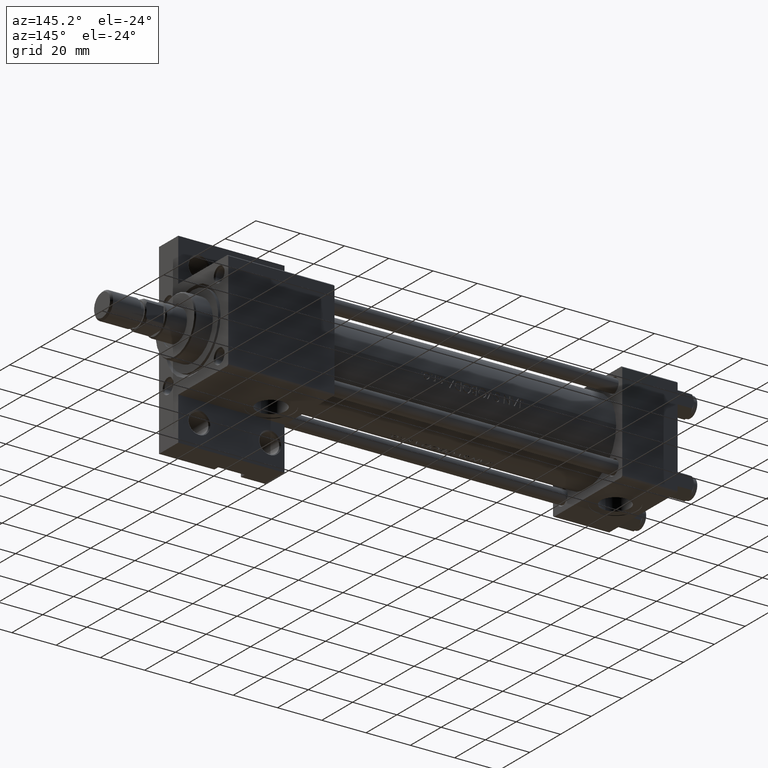
[diagram: clean part render]
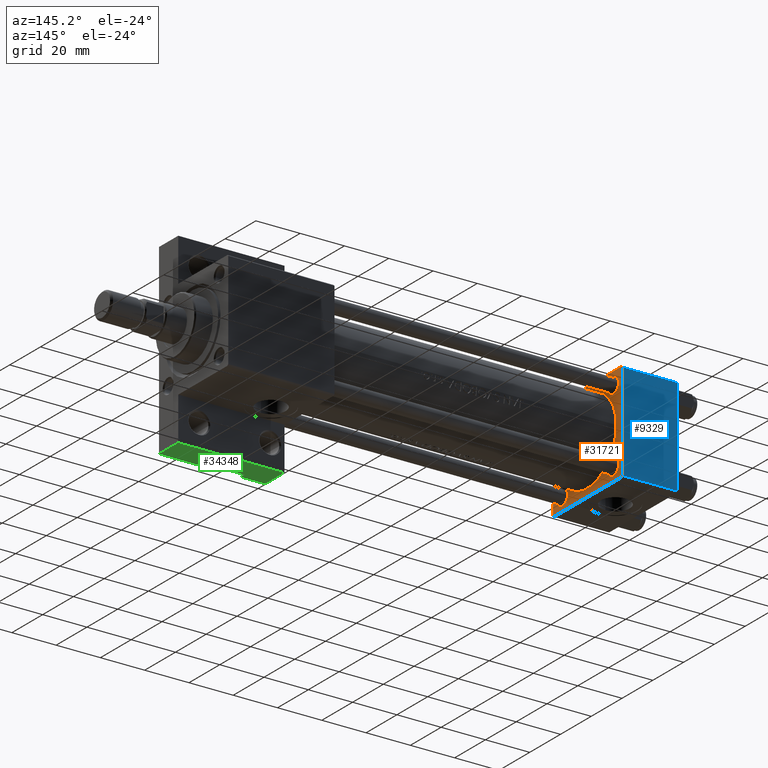
[diagram: same view with three faces highlighted in distinct colors, each labeled with its STEP entity id]
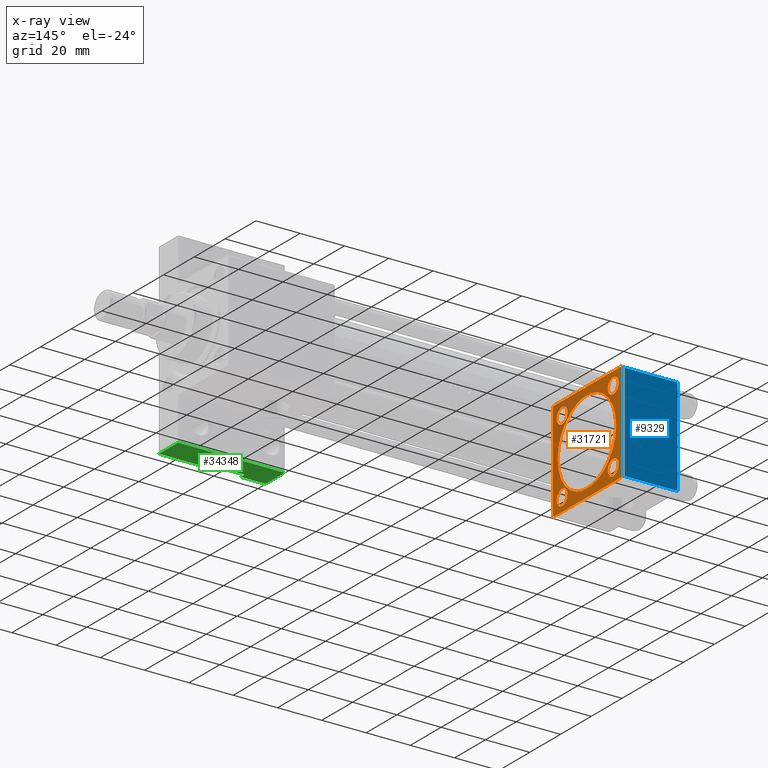
[diagram: x-ray of the same camera — body ghosted, the three highlighted faces saturated]
A machine part, auxiliary view with three faces highlighted in distinct colors.
The next image is the same camera in x-ray (body ghosted, the three faces saturated) — at least one of them is partly hidden behind the body in this view.
Their STEP definitions:

[orange] entity #31721 — the highlighted planar face has unit normal (-1, 0, -0).
#421 = ORIENTED_EDGE ( 'NONE', *, *, #47146, .T. ) ;
#547 = CARTESIAN_POINT ( 'NONE',  ( 25.00000000000000000, -16.59999999999999076, 16.60000000000000853 ) ) ;
#653 = DIRECTION ( 'NONE',  ( 0.000000000000000000, 0.000000000000000000, 1.000000000000000000 ) ) ;
#924 = DIRECTION ( 'NONE',  ( 0.000000000000000000, 0.000000000000000000, 1.000000000000000000 ) ) ;
#999 = EDGE_CURVE ( 'NONE', #15465, #1800, #34184, .T. ) ;
#1144 = DIRECTION ( 'NONE',  ( 0.000000000000000000, -1.000000000000000000, -7.709882115452476934E-17 ) ) ;
#1197 = VERTEX_POINT ( 'NONE', #13611 ) ;
#1800 = VERTEX_POINT ( 'NONE', #31229 ) ;
#1882 = CARTESIAN_POINT ( 'NONE',  ( 25.00000000000000000, 0.000000000000000000, 0.000000000000000000 ) ) ;
#2006 = CARTESIAN_POINT ( 'NONE',  ( 25.00000000000000000, -22.50000000000000000, 22.00000000000000000 ) ) ;
#2134 = FACE_BOUND ( 'NONE', #39084, .T. ) ;
#2613 = AXIS2_PLACEMENT_3D ( 'NONE', #17272, #32600, #36008 ) ;
#2733 = CIRCLE ( 'NONE', #25304, 19.00000000000000000 ) ;
#3384 = CIRCLE ( 'NONE', #44595, 19.00000000000000000 ) ;
#3739 = EDGE_CURVE ( 'NONE', #35954, #44279, #17124, .T. ) ;
#3954 = DIRECTION ( 'NONE',  ( 0.000000000000000000, 0.000000000000000000, 1.000000000000000000 ) ) ;
#4417 = CARTESIAN_POINT ( 'NONE',  ( 25.00000000000000000, -22.50000000000000000, 22.00000000000000000 ) ) ;
#4679 = EDGE_LOOP ( 'NONE', ( #5987, #32814 ) ) ;
#4760 = CARTESIAN_POINT ( 'NONE',  ( 25.00000000000000000, 21.99999999999999289, -22.49999999999999645 ) ) ;
#5399 = CARTESIAN_POINT ( 'NONE',  ( 25.00000000000000000, 22.50000000000000000, 22.50000000000000355 ) ) ;
#5987 = ORIENTED_EDGE ( 'NONE', *, *, #14437, .T. ) ;
#6533 = VERTEX_POINT ( 'NONE', #15291 ) ;
#6950 = CARTESIAN_POINT ( 'NONE',  ( 25.00000000000000000, -21.99999999999997868, 22.50000000000000000 ) ) ;
#7322 = EDGE_CURVE ( 'NONE', #15465, #6533, #38770, .T. ) ;
#7483 = CIRCLE ( 'NONE', #21467, 3.499999999999975131 ) ;
#7523 = ORIENTED_EDGE ( 'NONE', *, *, #32202, .T. ) ;
#7759 = DIRECTION ( 'NONE',  ( -1.000000000000000000, 0.000000000000000000, -0.000000000000000000 ) ) ;
#8161 = DIRECTION ( 'NONE',  ( -1.000000000000000000, 0.000000000000000000, -0.000000000000000000 ) ) ;
#9220 = VECTOR ( 'NONE', #32140, 1000.000000000000000 ) ;
#10292 = LINE ( 'NONE', #16476, #24652 ) ;
#10746 = EDGE_CURVE ( 'NONE', #1197, #24821, #34868, .T. ) ;
#10769 = VERTEX_POINT ( 'NONE', #34926 ) ;
#10780 = DIRECTION ( 'NONE',  ( 0.000000000000000000, -1.000000000000000000, -2.312964634635742957E-16 ) ) ;
#10891 = EDGE_LOOP ( 'NONE', ( #421, #37929 ) ) ;
#11168 = CIRCLE ( 'NONE', #2613, 3.499999999999975131 ) ;
#11265 = DIRECTION ( 'NONE',  ( -1.000000000000000000, 0.000000000000000000, -0.000000000000000000 ) ) ;
#12071 = DIRECTION ( 'NONE',  ( -1.000000000000000000, 0.000000000000000000, -0.000000000000000000 ) ) ;
#12723 = EDGE_CURVE ( 'NONE', #37001, #10769, #2733, .T. ) ;
#13218 = AXIS2_PLACEMENT_3D ( 'NONE', #38060, #41954, #23439 ) ;
#13355 = VERTEX_POINT ( 'NONE', #6950 ) ;
#13444 = LINE ( 'NONE', #46597, #34826 ) ;
#13611 = CARTESIAN_POINT ( 'NONE',  ( 25.00000000000000000, 16.59999999999999787, 20.10000000000000853 ) ) ;
#13651 = CIRCLE ( 'NONE', #46349, 3.500000000000003109 ) ;
#13677 = VECTOR ( 'NONE', #10780, 1000.000000000000000 ) ;
#13739 = VECTOR ( 'NONE', #32283, 1000.000000000000000 ) ;
#13803 = FACE_BOUND ( 'NONE', #31212, .T. ) ;
#13943 = DIRECTION ( 'NONE',  ( 1.000000000000000000, -0.000000000000000000, 0.000000000000000000 ) ) ;
#14040 = CARTESIAN_POINT ( 'NONE',  ( 25.00000000000000000, 22.50000000000000000, 21.99999999999999645 ) ) ;
#14105 = VERTEX_POINT ( 'NONE', #35042 ) ;
#14381 = VECTOR ( 'NONE', #19688, 1000.000000000000000 ) ;
#14437 = EDGE_CURVE ( 'NONE', #24821, #1197, #13651, .T. ) ;
#14562 = VECTOR ( 'NONE', #25067, 999.9999999999998863 ) ;
#14856 = ORIENTED_EDGE ( 'NONE', *, *, #41211, .F. ) ;
#15134 = CARTESIAN_POINT ( 'NONE',  ( 25.00000000000000000, -16.59999999999999076, 20.09999999999998721 ) ) ;
#15291 = CARTESIAN_POINT ( 'NONE',  ( 25.00000000000000000, 22.50000000000000000, -21.99999999999996803 ) ) ;
#15465 = VERTEX_POINT ( 'NONE', #14040 ) ;
#15609 = EDGE_CURVE ( 'NONE', #28983, #28818, #36250, .T. ) ;
#16476 = CARTESIAN_POINT ( 'NONE',  ( 25.00000000000000000, 22.50000000000000000, 22.50000000000000355 ) ) ;
#16504 = CARTESIAN_POINT ( 'NONE',  ( 25.00000000000000000, 22.50000000000000000, -21.99999999999998224 ) ) ;
#17124 = CIRCLE ( 'NONE', #13218, 3.499999999999978684 ) ;
#17229 = FACE_OUTER_BOUND ( 'NONE', #41843, .T. ) ;
#17272 = CARTESIAN_POINT ( 'NONE',  ( 25.00000000000000000, -16.59999999999999076, -16.60000000000000853 ) ) ;
#17649 = AXIS2_PLACEMENT_3D ( 'NONE', #36604, #11265, #37088 ) ;
#17774 = LINE ( 'NONE', #2006, #14562 ) ;
#17887 = CARTESIAN_POINT ( 'NONE',  ( 25.00000000000000000, -22.50000000000000000, -21.99999999999997158 ) ) ;
#19158 = CARTESIAN_POINT ( 'NONE',  ( 25.00000000000000000, 16.59999999999999787, -16.60000000000000497 ) ) ;
#19688 = DIRECTION ( 'NONE',  ( -0.000000000000000000, 0.7071067811865426878, 0.7071067811865524577 ) ) ;
#19919 = EDGE_LOOP ( 'NONE', ( #21684, #38648 ) ) ;
#20126 = DIRECTION ( 'NONE',  ( 0.000000000000000000, 0.000000000000000000, 1.000000000000000000 ) ) ;
#20894 = FACE_BOUND ( 'NONE', #19919, .T. ) ;
#21467 = AXIS2_PLACEMENT_3D ( 'NONE', #35191, #28139, #20126 ) ;
#21497 = DIRECTION ( 'NONE',  ( 0.000000000000000000, 0.000000000000000000, 1.000000000000000000 ) ) ;
#21684 = ORIENTED_EDGE ( 'NONE', *, *, #15609, .T. ) ;
#21986 = CARTESIAN_POINT ( 'NONE',  ( 25.00000000000000000, 22.50000000000000000, -22.49999999999999645 ) ) ;
#22310 = ORIENTED_EDGE ( 'NONE', *, *, #28432, .F. ) ;
#22483 = DIRECTION ( 'NONE',  ( -1.000000000000000000, 0.000000000000000000, -0.000000000000000000 ) ) ;
#23037 = DIRECTION ( 'NONE',  ( 0.000000000000000000, 0.000000000000000000, 1.000000000000000000 ) ) ;
#23368 = ORIENTED_EDGE ( 'NONE', *, *, #999, .T. ) ;
#23439 = DIRECTION ( 'NONE',  ( 0.000000000000000000, 0.000000000000000000, 1.000000000000000000 ) ) ;
#23533 = VERTEX_POINT ( 'NONE', #46836 ) ;
#24652 = VECTOR ( 'NONE', #1144, 1000.000000000000000 ) ;
#24740 = CARTESIAN_POINT ( 'NONE',  ( 25.00000000000000000, 16.59999999999999787, -13.10000000000000142 ) ) ;
#24821 = VERTEX_POINT ( 'NONE', #41410 ) ;
#25013 = PLANE ( 'NONE',  #45691 ) ;
#25067 = DIRECTION ( 'NONE',  ( -0.000000000000000000, -0.7071067811865525687, -0.7071067811865425767 ) ) ;
#25230 = CIRCLE ( 'NONE', #38438, 3.499999999999978684 ) ;
#25304 = AXIS2_PLACEMENT_3D ( 'NONE', #25870, #13943, #21497 ) ;
#25851 = EDGE_CURVE ( 'NONE', #33634, #6533, #34079, .T. ) ;
#25870 = CARTESIAN_POINT ( 'NONE',  ( 24.99999999999999289, 6.123233995736727825E-17, -0.4999999999999970024 ) ) ;
#26257 = ORIENTED_EDGE ( 'NONE', *, *, #34927, .T. ) ;
#26344 = AXIS2_PLACEMENT_3D ( 'NONE', #41529, #8161, #23037 ) ;
#26521 = CARTESIAN_POINT ( 'NONE',  ( 25.00000000000000000, 16.59999999999999787, 16.60000000000000497 ) ) ;
#28139 = DIRECTION ( 'NONE',  ( -1.000000000000000000, 0.000000000000000000, -0.000000000000000000 ) ) ;
#28188 = DIRECTION ( 'NONE',  ( -0.000000000000000000, 0.000000000000000000, 1.000000000000000000 ) ) ;
#28214 = ORIENTED_EDGE ( 'NONE', *, *, #38896, .T. ) ;
#28432 = EDGE_CURVE ( 'NONE', #33634, #14105, #29284, .T. ) ;
#28538 = CIRCLE ( 'NONE', #17649, 3.500000000000003109 ) ;
#28676 = FACE_BOUND ( 'NONE', #4679, .T. ) ;
#28818 = VERTEX_POINT ( 'NONE', #24740 ) ;
#28983 = VERTEX_POINT ( 'NONE', #33711 ) ;
#29284 = LINE ( 'NONE', #21986, #13677 ) ;
#29989 = EDGE_CURVE ( 'NONE', #1800, #13355, #10292, .T. ) ;
#30172 = EDGE_CURVE ( 'NONE', #28818, #28983, #28538, .T. ) ;
#31212 = EDGE_LOOP ( 'NONE', ( #31852, #28214 ) ) ;
#31229 = CARTESIAN_POINT ( 'NONE',  ( 25.00000000000000000, 21.99999999999999289, 22.50000000000000355 ) ) ;
#31508 = EDGE_CURVE ( 'NONE', #13355, #35412, #17774, .T. ) ;
#31721 = ADVANCED_FACE ( 'NONE', ( #47183, #20894, #13803, #28676, #2134, #17229 ), #25013, .F. ) ;
#31852 = ORIENTED_EDGE ( 'NONE', *, *, #3739, .T. ) ;
#32140 = DIRECTION ( 'NONE',  ( 0.000000000000000000, 0.000000000000000000, -1.000000000000000000 ) ) ;
#32202 = EDGE_CURVE ( 'NONE', #35412, #35931, #13444, .T. ) ;
#32283 = DIRECTION ( 'NONE',  ( 0.000000000000000000, 0.7071067811865426878, -0.7071067811865524577 ) ) ;
#32430 = VECTOR ( 'NONE', #33938, 1000.000000000000114 ) ;
#32535 = ORIENTED_EDGE ( 'NONE', *, *, #7322, .F. ) ;
#32600 = DIRECTION ( 'NONE',  ( -1.000000000000000000, 0.000000000000000000, -0.000000000000000000 ) ) ;
#32814 = ORIENTED_EDGE ( 'NONE', *, *, #10746, .T. ) ;
#33152 = AXIS2_PLACEMENT_3D ( 'NONE', #19158, #12071, #653 ) ;
#33634 = VERTEX_POINT ( 'NONE', #4760 ) ;
#33711 = CARTESIAN_POINT ( 'NONE',  ( 25.00000000000000000, 16.59999999999999787, -20.10000000000000853 ) ) ;
#33938 = DIRECTION ( 'NONE',  ( 0.000000000000000000, -0.7071067811865474617, 0.7071067811865474617 ) ) ;
#34079 = LINE ( 'NONE', #16504, #14381 ) ;
#34184 = LINE ( 'NONE', #41731, #32430 ) ;
#34246 = ORIENTED_EDGE ( 'NONE', *, *, #31508, .T. ) ;
#34826 = VECTOR ( 'NONE', #47061, 1000.000000000000000 ) ;
#34868 = CIRCLE ( 'NONE', #26344, 3.500000000000003109 ) ;
#34926 = CARTESIAN_POINT ( 'NONE',  ( 24.99999999999999289, 6.123233995736727825E-17, 18.50000000000000355 ) ) ;
#34927 = EDGE_CURVE ( 'NONE', #35931, #14105, #43512, .T. ) ;
#35042 = CARTESIAN_POINT ( 'NONE',  ( 25.00000000000000000, -21.99999999999997158, -22.50000000000000711 ) ) ;
#35191 = CARTESIAN_POINT ( 'NONE',  ( 25.00000000000000000, -16.59999999999999076, -16.60000000000000853 ) ) ;
#35412 = VERTEX_POINT ( 'NONE', #4417 ) ;
#35931 = VERTEX_POINT ( 'NONE', #17887 ) ;
#35954 = VERTEX_POINT ( 'NONE', #39316 ) ;
#36008 = DIRECTION ( 'NONE',  ( 0.000000000000000000, 0.000000000000000000, 1.000000000000000000 ) ) ;
#36071 = CARTESIAN_POINT ( 'NONE',  ( 24.99999999999999289, 6.123233995736727825E-17, -0.4999999999999970024 ) ) ;
#36250 = CIRCLE ( 'NONE', #33152, 3.500000000000003109 ) ;
#36557 = VERTEX_POINT ( 'NONE', #45228 ) ;
#36604 = CARTESIAN_POINT ( 'NONE',  ( 25.00000000000000000, 16.59999999999999787, -16.60000000000000497 ) ) ;
#37001 = VERTEX_POINT ( 'NONE', #37112 ) ;
#37088 = DIRECTION ( 'NONE',  ( 0.000000000000000000, 0.000000000000000000, 1.000000000000000000 ) ) ;
#37112 = CARTESIAN_POINT ( 'NONE',  ( 24.99999999999999289, 2.388061258337338150E-15, -19.49999999999999645 ) ) ;
#37929 = ORIENTED_EDGE ( 'NONE', *, *, #42480, .T. ) ;
#38060 = CARTESIAN_POINT ( 'NONE',  ( 25.00000000000000000, -16.59999999999999076, 16.60000000000000853 ) ) ;
#38438 = AXIS2_PLACEMENT_3D ( 'NONE', #547, #22483, #3954 ) ;
#38648 = ORIENTED_EDGE ( 'NONE', *, *, #30172, .T. ) ;
#38770 = LINE ( 'NONE', #5399, #9220 ) ;
#38896 = EDGE_CURVE ( 'NONE', #44279, #35954, #25230, .T. ) ;
#39084 = EDGE_LOOP ( 'NONE', ( #14856, #48218 ) ) ;
#39316 = CARTESIAN_POINT ( 'NONE',  ( 25.00000000000000000, -16.59999999999999076, 13.10000000000002807 ) ) ;
#41211 = EDGE_CURVE ( 'NONE', #10769, #37001, #3384, .T. ) ;
#41410 = CARTESIAN_POINT ( 'NONE',  ( 25.00000000000000000, 16.59999999999999787, 13.10000000000000142 ) ) ;
#41529 = CARTESIAN_POINT ( 'NONE',  ( 25.00000000000000000, 16.59999999999999787, 16.60000000000000497 ) ) ;
#41731 = CARTESIAN_POINT ( 'NONE',  ( 25.00000000000000000, 21.99999999999999289, 22.50000000000000355 ) ) ;
#41843 = EDGE_LOOP ( 'NONE', ( #22310, #43500, #32535, #23368, #47625, #34246, #7523, #26257 ) ) ;
#41954 = DIRECTION ( 'NONE',  ( -1.000000000000000000, 0.000000000000000000, -0.000000000000000000 ) ) ;
#42480 = EDGE_CURVE ( 'NONE', #23533, #36557, #11168, .T. ) ;
#42798 = CARTESIAN_POINT ( 'NONE',  ( 25.00000000000000000, -21.99999999999998579, -22.50000000000000711 ) ) ;
#42917 = DIRECTION ( 'NONE',  ( 1.000000000000000000, -0.000000000000000000, 0.000000000000000000 ) ) ;
#43500 = ORIENTED_EDGE ( 'NONE', *, *, #25851, .T. ) ;
#43512 = LINE ( 'NONE', #42798, #13739 ) ;
#43525 = DIRECTION ( 'NONE',  ( -1.000000000000000000, 0.000000000000000000, -0.000000000000000000 ) ) ;
#43634 = DIRECTION ( 'NONE',  ( 0.000000000000000000, 0.000000000000000000, 1.000000000000000000 ) ) ;
#44279 = VERTEX_POINT ( 'NONE', #15134 ) ;
#44595 = AXIS2_PLACEMENT_3D ( 'NONE', #36071, #42917, #43634 ) ;
#45228 = CARTESIAN_POINT ( 'NONE',  ( 25.00000000000000000, -16.59999999999999076, -20.09999999999998366 ) ) ;
#45691 = AXIS2_PLACEMENT_3D ( 'NONE', #1882, #43525, #28188 ) ;
#46349 = AXIS2_PLACEMENT_3D ( 'NONE', #26521, #7759, #924 ) ;
#46597 = CARTESIAN_POINT ( 'NONE',  ( 25.00000000000000000, -22.50000000000000000, 22.50000000000000000 ) ) ;
#46836 = CARTESIAN_POINT ( 'NONE',  ( 25.00000000000000000, -16.59999999999999076, -13.10000000000003162 ) ) ;
#47061 = DIRECTION ( 'NONE',  ( 0.000000000000000000, 0.000000000000000000, -1.000000000000000000 ) ) ;
#47146 = EDGE_CURVE ( 'NONE', #36557, #23533, #7483, .T. ) ;
#47183 = FACE_BOUND ( 'NONE', #10891, .T. ) ;
#47625 = ORIENTED_EDGE ( 'NONE', *, *, #29989, .T. ) ;
#48218 = ORIENTED_EDGE ( 'NONE', *, *, #12723, .F. ) ;

[blue] entity #9329 — the highlighted planar face has unit normal (0, -1, -0).
#372 = DIRECTION ( 'NONE',  ( 1.000000000000000000, 0.000000000000000000, 0.000000000000000000 ) ) ;
#1144 = DIRECTION ( 'NONE',  ( 0.000000000000000000, -1.000000000000000000, -7.709882115452476934E-17 ) ) ;
#1783 = VECTOR ( 'NONE', #372, 1000.000000000000000 ) ;
#1800 = VERTEX_POINT ( 'NONE', #31229 ) ;
#6099 = ORIENTED_EDGE ( 'NONE', *, *, #16402, .T. ) ;
#6950 = CARTESIAN_POINT ( 'NONE',  ( 25.00000000000000000, -21.99999999999997868, 22.50000000000000000 ) ) ;
#7129 = EDGE_LOOP ( 'NONE', ( #6099, #41389, #33691, #8242 ) ) ;
#8111 = DIRECTION ( 'NONE',  ( -1.000000000000000000, 0.000000000000000000, 0.000000000000000000 ) ) ;
#8242 = ORIENTED_EDGE ( 'NONE', *, *, #14751, .T. ) ;
#8668 = VERTEX_POINT ( 'NONE', #39886 ) ;
#9329 = ADVANCED_FACE ( 'NONE', ( #24095 ), #31855, .F. ) ;
#10292 = LINE ( 'NONE', #16476, #24652 ) ;
#12326 = LINE ( 'NONE', #30126, #24654 ) ;
#12895 = VECTOR ( 'NONE', #8111, 1000.000000000000000 ) ;
#13120 = DIRECTION ( 'NONE',  ( 0.000000000000000000, 7.709882115452476934E-17, -1.000000000000000000 ) ) ;
#13355 = VERTEX_POINT ( 'NONE', #6950 ) ;
#14751 = EDGE_CURVE ( 'NONE', #1800, #20671, #34637, .T. ) ;
#14984 = LINE ( 'NONE', #40333, #1783 ) ;
#15398 = AXIS2_PLACEMENT_3D ( 'NONE', #19708, #13120, #23381 ) ;
#16402 = EDGE_CURVE ( 'NONE', #20671, #8668, #12326, .T. ) ;
#16476 = CARTESIAN_POINT ( 'NONE',  ( 25.00000000000000000, 22.50000000000000000, 22.50000000000000355 ) ) ;
#19708 = CARTESIAN_POINT ( 'NONE',  ( 25.00000000000000000, 22.50000000000000000, 22.50000000000000355 ) ) ;
#19879 = CARTESIAN_POINT ( 'NONE',  ( 0.000000000000000000, 21.99999999999999289, 22.50000000000000355 ) ) ;
#20671 = VERTEX_POINT ( 'NONE', #19879 ) ;
#23381 = DIRECTION ( 'NONE',  ( 0.000000000000000000, 1.000000000000000000, 7.709882115452476934E-17 ) ) ;
#24095 = FACE_OUTER_BOUND ( 'NONE', #7129, .T. ) ;
#24652 = VECTOR ( 'NONE', #1144, 1000.000000000000000 ) ;
#24654 = VECTOR ( 'NONE', #38150, 1000.000000000000000 ) ;
#27579 = CARTESIAN_POINT ( 'NONE',  ( 0.000000000000000000, 21.99999999999999289, 22.50000000000000355 ) ) ;
#29989 = EDGE_CURVE ( 'NONE', #1800, #13355, #10292, .T. ) ;
#30126 = CARTESIAN_POINT ( 'NONE',  ( 0.000000000000000000, 22.50000000000000000, 22.50000000000000355 ) ) ;
#31229 = CARTESIAN_POINT ( 'NONE',  ( 25.00000000000000000, 21.99999999999999289, 22.50000000000000355 ) ) ;
#31855 = PLANE ( 'NONE',  #15398 ) ;
#33691 = ORIENTED_EDGE ( 'NONE', *, *, #29989, .F. ) ;
#34637 = LINE ( 'NONE', #27579, #12895 ) ;
#38150 = DIRECTION ( 'NONE',  ( 0.000000000000000000, -1.000000000000000000, -7.709882115452476934E-17 ) ) ;
#39743 = EDGE_CURVE ( 'NONE', #8668, #13355, #14984, .T. ) ;
#39886 = CARTESIAN_POINT ( 'NONE',  ( 0.000000000000000000, -21.99999999999997868, 22.50000000000000000 ) ) ;
#40333 = CARTESIAN_POINT ( 'NONE',  ( 25.00000000000000000, -21.99999999999999289, 22.50000000000000000 ) ) ;
#41389 = ORIENTED_EDGE ( 'NONE', *, *, #39743, .T. ) ;

[green] entity #34348 — the highlighted planar face has unit normal (0, 0, -1).
#187 = EDGE_CURVE ( 'NONE', #17258, #40983, #13901, .T. ) ;
#2853 = LINE ( 'NONE', #25515, #7318 ) ;
#3764 = CARTESIAN_POINT ( 'NONE',  ( 155.0000000000000000, 41.99999999999999289, -9.999999999999998224 ) ) ;
#3818 = CARTESIAN_POINT ( 'NONE',  ( 165.9999999999999716, 41.99999999999999289, -22.50000000000000000 ) ) ;
#4100 = EDGE_CURVE ( 'NONE', #13247, #34915, #16527, .T. ) ;
#4411 = DIRECTION ( 'NONE',  ( -1.000000000000000000, 2.891205793294679312E-16, 0.000000000000000000 ) ) ;
#5454 = LINE ( 'NONE', #13454, #40871 ) ;
#5475 = CARTESIAN_POINT ( 'NONE',  ( 155.0000000000000000, 41.99999999999999289, -22.50000000000000000 ) ) ;
#5544 = VERTEX_POINT ( 'NONE', #5475 ) ;
#6205 = LINE ( 'NONE', #31997, #43927 ) ;
#7318 = VECTOR ( 'NONE', #17720, 1000.000000000000000 ) ;
#8230 = VECTOR ( 'NONE', #11552, 1000.000000000000000 ) ;
#8572 = VECTOR ( 'NONE', #46243, 1000.000000000000000 ) ;
#11552 = DIRECTION ( 'NONE',  ( 0.000000000000000000, 0.000000000000000000, -1.000000000000000000 ) ) ;
#11619 = DIRECTION ( 'NONE',  ( 0.000000000000000000, 0.000000000000000000, -1.000000000000000000 ) ) ;
#12648 = DIRECTION ( 'NONE',  ( -0.000000000000000000, -0.000000000000000000, -1.000000000000000000 ) ) ;
#12702 = VECTOR ( 'NONE', #12648, 1000.000000000000000 ) ;
#12717 = EDGE_LOOP ( 'NONE', ( #33311, #35993, #41930, #23809, #13088, #44435, #46874, #29709 ) ) ;
#13088 = ORIENTED_EDGE ( 'NONE', *, *, #46515, .F. ) ;
#13142 = LINE ( 'NONE', #28005, #12702 ) ;
#13247 = VERTEX_POINT ( 'NONE', #47145 ) ;
#13454 = CARTESIAN_POINT ( 'NONE',  ( 165.9999999999999716, 41.99999999999999289, -20.00000000000000000 ) ) ;
#13901 = LINE ( 'NONE', #24872, #44651 ) ;
#15379 = DIRECTION ( 'NONE',  ( 2.891205793294679312E-16, 1.000000000000000000, 0.000000000000000000 ) ) ;
#16527 = LINE ( 'NONE', #31364, #8572 ) ;
#16871 = CARTESIAN_POINT ( 'NONE',  ( 203.0000000000000000, 41.99999999999997868, -22.50000000000000000 ) ) ;
#17258 = VERTEX_POINT ( 'NONE', #37513 ) ;
#17720 = DIRECTION ( 'NONE',  ( 1.000000000000000000, -2.891205793294679312E-16, 0.000000000000000000 ) ) ;
#19166 = EDGE_CURVE ( 'NONE', #40983, #31360, #13142, .T. ) ;
#20307 = DIRECTION ( 'NONE',  ( -0.000000000000000000, -0.000000000000000000, -1.000000000000000000 ) ) ;
#20492 = EDGE_CURVE ( 'NONE', #31360, #41160, #2853, .T. ) ;
#21711 = DIRECTION ( 'NONE',  ( 1.000000000000000000, 0.000000000000000000, 0.000000000000000000 ) ) ;
#22990 = CARTESIAN_POINT ( 'NONE',  ( 178.0000000000000000, 41.99999999999999289, -20.00000000000000000 ) ) ;
#23144 = AXIS2_PLACEMENT_3D ( 'NONE', #33868, #15379, #4411 ) ;
#23569 = EDGE_CURVE ( 'NONE', #17258, #43622, #5454, .T. ) ;
#23809 = ORIENTED_EDGE ( 'NONE', *, *, #43833, .F. ) ;
#24872 = CARTESIAN_POINT ( 'NONE',  ( 165.9999999999999716, 41.99999999999999289, -20.00000000000000000 ) ) ;
#25515 = CARTESIAN_POINT ( 'NONE',  ( 155.0000000000000000, 41.99999999999999289, -22.50000000000000000 ) ) ;
#26712 = CARTESIAN_POINT ( 'NONE',  ( 203.0000000000000000, 41.99999999999997868, -9.999999999999998224 ) ) ;
#28005 = CARTESIAN_POINT ( 'NONE',  ( 178.0000000000000000, 41.99999999999999289, -20.00000000000000000 ) ) ;
#29563 = CARTESIAN_POINT ( 'NONE',  ( 178.0000000000000000, 41.99999999999999289, -22.50000000000000000 ) ) ;
#29709 = ORIENTED_EDGE ( 'NONE', *, *, #20492, .F. ) ;
#30130 = LINE ( 'NONE', #26712, #45575 ) ;
#31360 = VERTEX_POINT ( 'NONE', #29563 ) ;
#31364 = CARTESIAN_POINT ( 'NONE',  ( 155.0000000000000000, 41.99999999999999289, -9.999999999999998224 ) ) ;
#31997 = CARTESIAN_POINT ( 'NONE',  ( 155.0000000000000000, 41.99999999999999289, -22.50000000000000000 ) ) ;
#33311 = ORIENTED_EDGE ( 'NONE', *, *, #19166, .F. ) ;
#33868 = CARTESIAN_POINT ( 'NONE',  ( 155.0000000000000000, 41.99999999999999289, -9.999999999999998224 ) ) ;
#34348 = ADVANCED_FACE ( 'NONE', ( #37033 ), #38021, .T. ) ;
#34915 = VERTEX_POINT ( 'NONE', #46917 ) ;
#35174 = DIRECTION ( 'NONE',  ( 1.000000000000000000, -2.891205793294679312E-16, 0.000000000000000000 ) ) ;
#35993 = ORIENTED_EDGE ( 'NONE', *, *, #187, .F. ) ;
#37033 = FACE_OUTER_BOUND ( 'NONE', #12717, .T. ) ;
#37363 = LINE ( 'NONE', #3764, #8230 ) ;
#37513 = CARTESIAN_POINT ( 'NONE',  ( 165.9999999999999716, 41.99999999999999289, -20.00000000000000000 ) ) ;
#38021 = PLANE ( 'NONE',  #23144 ) ;
#40871 = VECTOR ( 'NONE', #20307, 1000.000000000000000 ) ;
#40983 = VERTEX_POINT ( 'NONE', #22990 ) ;
#41160 = VERTEX_POINT ( 'NONE', #16871 ) ;
#41930 = ORIENTED_EDGE ( 'NONE', *, *, #23569, .T. ) ;
#43622 = VERTEX_POINT ( 'NONE', #3818 ) ;
#43833 = EDGE_CURVE ( 'NONE', #5544, #43622, #6205, .T. ) ;
#43927 = VECTOR ( 'NONE', #35174, 1000.000000000000000 ) ;
#44435 = ORIENTED_EDGE ( 'NONE', *, *, #4100, .T. ) ;
#44651 = VECTOR ( 'NONE', #21711, 1000.000000000000000 ) ;
#45575 = VECTOR ( 'NONE', #11619, 1000.000000000000000 ) ;
#46243 = DIRECTION ( 'NONE',  ( 1.000000000000000000, -2.891205793294679312E-16, 0.000000000000000000 ) ) ;
#46515 = EDGE_CURVE ( 'NONE', #13247, #5544, #37363, .T. ) ;
#46874 = ORIENTED_EDGE ( 'NONE', *, *, #46975, .T. ) ;
#46917 = CARTESIAN_POINT ( 'NONE',  ( 203.0000000000000000, 41.99999999999997868, -9.999999999999998224 ) ) ;
#46975 = EDGE_CURVE ( 'NONE', #34915, #41160, #30130, .T. ) ;
#47145 = CARTESIAN_POINT ( 'NONE',  ( 155.0000000000000000, 41.99999999999999289, -9.999999999999998224 ) ) ;